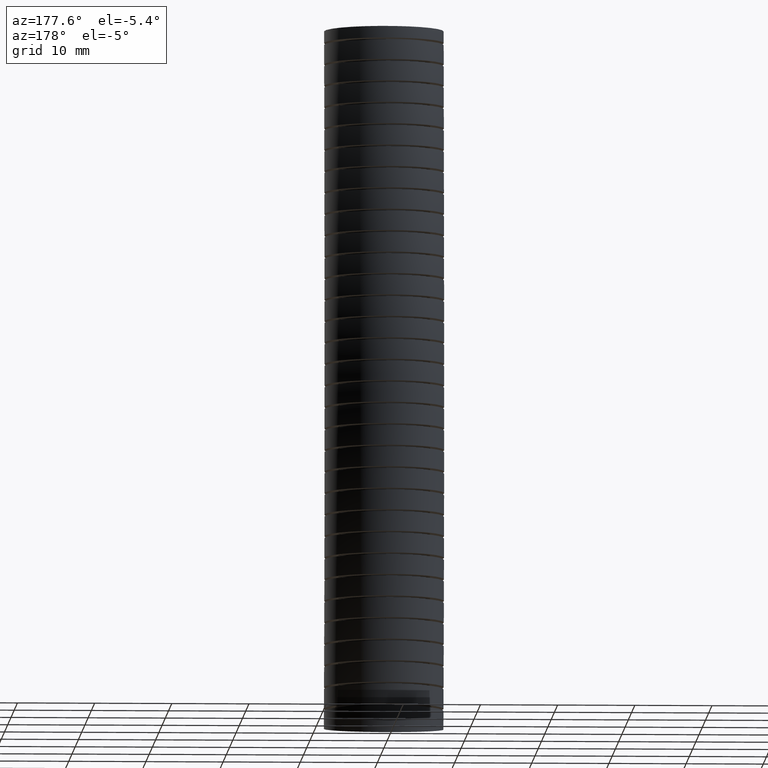
[diagram: clean part render]
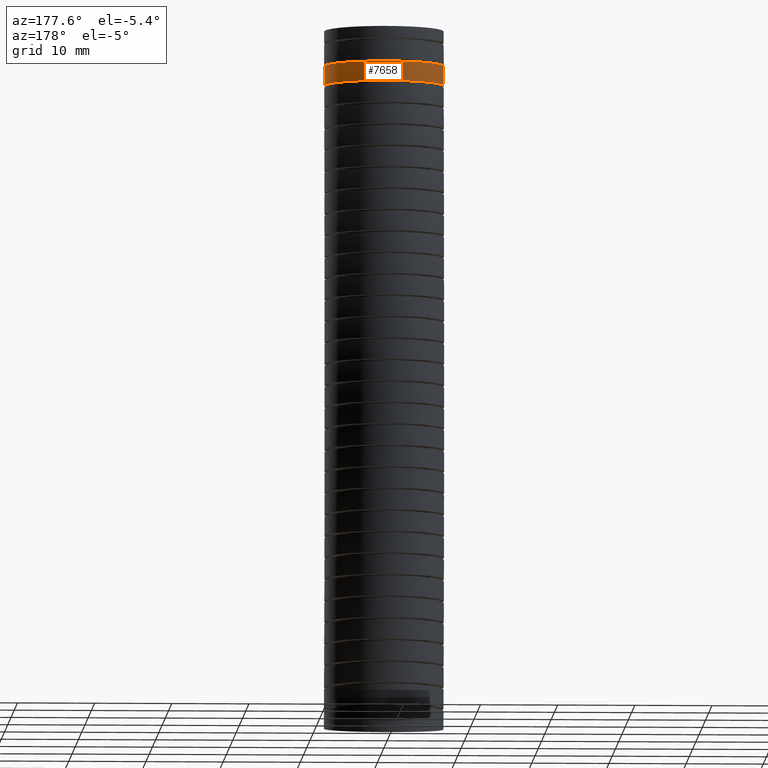
[diagram: same view with one face highlighted and labeled with its STEP entity id]
A machine part, auxiliary view. The second image highlights one B-rep face of the part: STEP entity #7658.
In plain terms, the highlighted face is a freeform B-spline surface patch.
Its self-contained STEP definition (entity closure, byte-faithful):
#2498 = CARTESIAN_POINT ( 'NONE',  ( 0.3050000000000001000, 0.008264919985043951700, -0.1798843797267528100 ) ) ;
#2653 = CARTESIAN_POINT ( 'NONE',  ( -0.3025282801913035700, 0.04828840751932621900, -0.1798843797267461200 ) ) ;
#2654 = CARTESIAN_POINT ( 'NONE',  ( -0.3045026291454070400, 0.02835153162744698600, -0.1798843797267460900 ) ) ;
#2655 = CARTESIAN_POINT ( 'NONE',  ( -0.3049999999999999400, 0.01825418101564759200, -0.1798843797267460100 ) ) ;
#2656 = CARTESIAN_POINT ( 'NONE',  ( -0.3049999999999999900, 0.008264919985043361900, -0.1798843797267460100 ) ) ;
#2660 = B_SPLINE_CURVE_WITH_KNOTS ( 'NONE', 3,
 ( #2656, #2655, #2654, #2653, #2738, #2737, #2736, #2735, #2734, #2733, #2732, #2731, #2730, #2729, #2728, #2727, #2726, #2725, #2724, #2723, #2722, #2721, #2720, #2719, #2718, #2717, #2716, #2715, #2714, #2713, #2712, #2711, #2710, #2709, #2708, #2707, #2706, #2705, #2704, #2703, #2702, #2701, #2700, #2699, #2698 ),
 .UNSPECIFIED., .F., .F.,
 ( 4, 2, 2, 2, 2, 2, 2, 2, 2, 2, 2, 1, 2, 2, 2, 2, 2, 2, 2, 2, 2, 2, 4 ),
 ( 0.02447915468494796900, 0.02524417204589210100, 0.02600918940683623000, 0.02753922412872449000, 0.02906925885061275100, 0.02983427621155688300, 0.03059929357250101200, 0.03212932829438927600, 0.03365936301627753300, 0.03518939773816579700, 0.03595441509910992500, 0.03671943246005405400, 0.03748444982099818200, 0.03824946718194231100, 0.03977950190383056800, 0.04054451926477470300, 0.04130953662571883200, 0.04283957134760709600, 0.04360458870855122400, 0.04436960606949536000, 0.04589964079138362400, 0.04742967551327188800, 0.04895971023516015200 ),
 .UNSPECIFIED. ) ;
#2698 = CARTESIAN_POINT ( 'NONE',  ( 0.3050000000000001000, 0.008264919985043951700, -0.1798843797267528100 ) ) ;
#2699 = CARTESIAN_POINT ( 'NONE',  ( 0.3050000000000001000, 0.02841370344393676100, -0.1798843797267528400 ) ) ;
#2700 = CARTESIAN_POINT ( 'NONE',  ( 0.3029972137185611400, 0.04841757945559040100, -0.1798843797267459800 ) ) ;
#2701 = CARTESIAN_POINT ( 'NONE',  ( 0.2952284011333528000, 0.08738139229224929600, -0.1798843797267460100 ) ) ;
#2702 = CARTESIAN_POINT ( 'NONE',  ( 0.2894374716786731700, 0.1065234891926356600, -0.1798843797267459800 ) ) ;
#2703 = CARTESIAN_POINT ( 'NONE',  ( 0.2740289913188028700, 0.1436765398418865500, -0.1798843797267459800 ) ) ;
#2704 = CARTESIAN_POINT ( 'NONE',  ( 0.2646248493972794300, 0.1612100466032987700, -0.1798843797267459500 ) ) ;
#2705 = CARTESIAN_POINT ( 'NONE',  ( 0.2480564353523960500, 0.1859995597086177300, -0.1798843797267459800 ) ) ;
#2706 = CARTESIAN_POINT ( 'NONE',  ( 0.2421202601055992800, 0.1940090965704035800, -0.1798843797267459500 ) ) ;
#2707 = CARTESIAN_POINT ( 'NONE',  ( 0.2293994366472957800, 0.2095075678197659600, -0.1798843797267459200 ) ) ;
#2708 = CARTESIAN_POINT ( 'NONE',  ( 0.2226118502106389000, 0.2169886886713109400, -0.1798843797267458400 ) ) ;
#2709 = CARTESIAN_POINT ( 'NONE',  ( 0.2014226331123999100, 0.2381538532863010400, -0.1798843797267459500 ) ) ;
#2710 = CARTESIAN_POINT ( 'NONE',  ( 0.1860644495059685100, 0.2507499533479791200, -0.1798843797267460100 ) ) ;
#2711 = CARTESIAN_POINT ( 'NONE',  ( 0.1611834056753037000, 0.2673783606149842700, -0.1798843797267460100 ) ) ;
#2712 = CARTESIAN_POINT ( 'NONE',  ( 0.1525335932965002900, 0.2725647545643510300, -0.1798843797267458700 ) ) ;
#2713 = CARTESIAN_POINT ( 'NONE',  ( 0.1348274169115959700, 0.2820204977194646900, -0.1798843797267459200 ) ) ;
#2714 = CARTESIAN_POINT ( 'NONE',  ( 0.1258051163320715900, 0.2862785458467176900, -0.1798843797267458400 ) ) ;
#2715 = CARTESIAN_POINT ( 'NONE',  ( 0.09824474711268291200, 0.2976825624354628200, -0.1798843797267458400 ) ) ;
#2716 = CARTESIAN_POINT ( 'NONE',  ( 0.07921794405626660100, 0.3034715446039299400, -0.1798843797267459800 ) ) ;
#2717 = CARTESIAN_POINT ( 'NONE',  ( 0.04966777020455508100, 0.3093508068058095600, -0.1798843797267460400 ) ) ;
#2718 = CARTESIAN_POINT ( 'NONE',  ( 0.03970218082432810200, 0.3108237338751864700, -0.1798843797267460900 ) ) ;
#2719 = CARTESIAN_POINT ( 'NONE',  ( 0.01985492244535162800, 0.3127707485509622100, -0.1798843797267460100 ) ) ;
#2720 = CARTESIAN_POINT ( 'NONE',  ( -4.951685250546485600E-007, 0.3137382957828361300, -0.1798843797267457000 ) ) ;
#2721 = CARTESIAN_POINT ( 'NONE',  ( -0.01987203747008249200, 0.3127701705137827000, -0.1798843797267459800 ) ) ;
#2722 = CARTESIAN_POINT ( 'NONE',  ( -0.03975177910982934100, 0.3108177636404501600, -0.1798843797267459500 ) ) ;
#2723 = CARTESIAN_POINT ( 'NONE',  ( -0.04975050526394263900, 0.3093363490661288400, -0.1798843797267459500 ) ) ;
#2724 = CARTESIAN_POINT ( 'NONE',  ( -0.07922897337399886800, 0.3034653259527914100, -0.1798843797267459800 ) ) ;
#2725 = CARTESIAN_POINT ( 'NONE',  ( -0.09824375901865962900, 0.2976841581563788900, -0.1798843797267458700 ) ) ;
#2726 = CARTESIAN_POINT ( 'NONE',  ( -0.1350239660769087500, 0.2824627532263713200, -0.1798843797267458100 ) ) ;
#2727 = CARTESIAN_POINT ( 'NONE',  ( -0.1529376816827332000, 0.2728912967437858700, -0.1798843797267459200 ) ) ;
#2728 = CARTESIAN_POINT ( 'NONE',  ( -0.1860627563720511400, 0.2507488975026818700, -0.1798843797267459200 ) ) ;
#2729 = CARTESIAN_POINT ( 'NONE',  ( -0.2014266959305607000, 0.2381535286222580800, -0.1798843797267459800 ) ) ;
#2730 = CARTESIAN_POINT ( 'NONE',  ( -0.2226526022831232500, 0.2169461104371265500, -0.1798843797267458700 ) ) ;
#2731 = CARTESIAN_POINT ( 'NONE',  ( -0.2294473382212249000, 0.2094518686896609800, -0.1798843797267458400 ) ) ;
#2732 = CARTESIAN_POINT ( 'NONE',  ( -0.2421378567434352700, 0.1939849818928954800, -0.1798843797267458700 ) ) ;
#2733 = CARTESIAN_POINT ( 'NONE',  ( -0.2480660069738587800, 0.1859859186792544600, -0.1798843797267460100 ) ) ;
#2734 = CARTESIAN_POINT ( 'NONE',  ( -0.2646250546880510900, 0.1612083783663353600, -0.1798843797267459500 ) ) ;
#2735 = CARTESIAN_POINT ( 'NONE',  ( -0.2740564293317984100, 0.1436239057267976700, -0.1798843797267459800 ) ) ;
#2736 = CARTESIAN_POINT ( 'NONE',  ( -0.2894702756519512700, 0.1064308144049039100, -0.1798843797267459800 ) ) ;
#2737 = CARTESIAN_POINT ( 'NONE',  ( -0.2952296185319971400, 0.08737890599893186100, -0.1798843797267458700 ) ) ;
#2738 = CARTESIAN_POINT ( 'NONE',  ( -0.3010575880273141900, 0.05814379444321000200, -0.1798843797267459500 ) ) ;
#2739 = B_SPLINE_CURVE_WITH_KNOTS ( 'NONE', 3,
 ( #2809, #2808, #2807, #2806 ),
 .UNSPECIFIED., .F., .F.,
 ( 4, 4 ),
 ( 0.05027708273097072200, 0.07819576797846994300 ),
 .UNSPECIFIED. ) ;
#2740 = CARTESIAN_POINT ( 'NONE',  ( 0.3050000000000000500, 0.01279829925938789400, -0.2797712675536775900 ) ) ;
#2805 = CARTESIAN_POINT ( 'NONE',  ( -0.3049999999999999900, 0.008264919985043361900, -0.1798843797267460100 ) ) ;
#2806 = CARTESIAN_POINT ( 'NONE',  ( 0.3050000000000000500, 0.01279829925938789400, -0.2797712675536775900 ) ) ;
#2807 = CARTESIAN_POINT ( 'NONE',  ( 0.3049999999999999400, 0.01129791340508413100, -0.2464760725880572300 ) ) ;
#2808 = CARTESIAN_POINT ( 'NONE',  ( 0.3049999999999999400, 0.009785336045911521500, -0.2131803846418581500 ) ) ;
#2809 = CARTESIAN_POINT ( 'NONE',  ( 0.3050000000000001000, 0.008264919985043951700, -0.1798843797267528100 ) ) ;
#2865 = B_SPLINE_CURVE_WITH_KNOTS ( 'NONE', 3,
 ( #2941, #2939, #2938, #2937 ),
 .UNSPECIFIED., .F., .F.,
 ( 4, 4 ),
 ( 0.05027708273096881400, 0.07819576797846584900 ),
 .UNSPECIFIED. ) ;
#2867 = CARTESIAN_POINT ( 'NONE',  ( -0.3049999999999999900, 0.01279829925938662100, -0.2797712675536629900 ) ) ;
#2937 = CARTESIAN_POINT ( 'NONE',  ( -0.3049999999999999900, 0.01279829925938662100, -0.2797712675536629900 ) ) ;
#2938 = CARTESIAN_POINT ( 'NONE',  ( -0.3050000000000000500, 0.01129791340508362300, -0.2464760725880451000 ) ) ;
#2939 = CARTESIAN_POINT ( 'NONE',  ( -0.3050000000000000500, 0.009785336045911127700, -0.2131803846418486600 ) ) ;
#2941 = CARTESIAN_POINT ( 'NONE',  ( -0.3049999999999999900, 0.008264919985043361900, -0.1798843797267460100 ) ) ;
#7657 = EDGE_LOOP ( 'NONE', ( #14346, #14342, #14347, #14344 ) ) ;
#7658 = ADVANCED_FACE ( 'NONE', ( #14549 ), #14612, .T. ) ;
#7689 = EDGE_CURVE ( 'NONE', #14352, #14356, #14911, .T. ) ;
#14097 = VERTEX_POINT ( 'NONE', #2498 ) ;
#14342 = ORIENTED_EDGE ( 'NONE', *, *, #14343, .T. ) ;
#14343 = EDGE_CURVE ( 'NONE', #14354, #14097, #2660, .T. ) ;
#14344 = ORIENTED_EDGE ( 'NONE', *, *, #7689, .T. ) ;
#14346 = ORIENTED_EDGE ( 'NONE', *, *, #14358, .F. ) ;
#14347 = ORIENTED_EDGE ( 'NONE', *, *, #14350, .T. ) ;
#14350 = EDGE_CURVE ( 'NONE', #14097, #14352, #2739, .T. ) ;
#14352 = VERTEX_POINT ( 'NONE', #2740 ) ;
#14354 = VERTEX_POINT ( 'NONE', #2805 ) ;
#14356 = VERTEX_POINT ( 'NONE', #2867 ) ;
#14358 = EDGE_CURVE ( 'NONE', #14354, #14356, #2865, .T. ) ;
#14549 = FACE_OUTER_BOUND ( 'NONE', #7657, .T. ) ;
#14587 = CARTESIAN_POINT ( 'NONE',  ( -0.3050000000000000500, -0.6165911457587421900, -3.301565899820480900 ) ) ;
#14588 = CARTESIAN_POINT ( 'NONE',  ( -0.3050000000000000500, -0.5689348463287677800, -2.799795492787948300 ) ) ;
#14589 = CARTESIAN_POINT ( 'NONE',  ( -0.3050000000000001000, -0.5337097317260344200, -1.651227135941712300 ) ) ;
#14590 = CARTESIAN_POINT ( 'NONE',  ( -0.3050000000000001600, -0.5794800608306244200, -0.6605737911785694000 ) ) ;
#14591 = CARTESIAN_POINT ( 'NONE',  ( -0.3050000000000001000, -0.6100000000000001000, 0.0000000000000000000 ) ) ;
#14592 = CARTESIAN_POINT ( 'NONE',  ( 0.3049999999999999400, -0.6339397472009050700, -3.484228316147418800 ) ) ;
#14593 = CARTESIAN_POINT ( 'NONE',  ( 0.3049999999999999400, -0.6165911457587421900, -3.301565899820480900 ) ) ;
#14594 = CARTESIAN_POINT ( 'NONE',  ( 0.3049999999999999400, -0.5689348463287677800, -2.799795492787948300 ) ) ;
#14595 = CARTESIAN_POINT ( 'NONE',  ( 0.3050000000000000500, -0.5337097317260344200, -1.651227135941712300 ) ) ;
#14596 = CARTESIAN_POINT ( 'NONE',  ( 0.3050000000000000500, -0.5794800608306244200, -0.6605737911785694000 ) ) ;
#14597 = CARTESIAN_POINT ( 'NONE',  ( 0.3050000000000000500, -0.6100000000000001000, 0.0000000000000000000 ) ) ;
#14598 = CARTESIAN_POINT ( 'NONE',  ( 0.3049999999999999900, -0.02999999999999999900, -3.569999999999999400 ) ) ;
#14599 = CARTESIAN_POINT ( 'NONE',  ( 0.3049999999999999400, -0.01189670328115252300, -3.380058092153300100 ) ) ;
#14600 = CARTESIAN_POINT ( 'NONE',  ( 0.3049999999999999900, 0.03783273064349424600, -2.858291051460112500 ) ) ;
#14601 = CARTESIAN_POINT ( 'NONE',  ( 0.3049999999999999900, 0.07694042471324438700, -1.669468061939300500 ) ) ;
#14602 = CARTESIAN_POINT ( 'NONE',  ( 0.3050000000000000500, 0.03078003440073750300, -0.6678710777714059700 ) ) ;
#14603 = CARTESIAN_POINT ( 'NONE',  ( 0.3050000000000000500, 0.0000000000000000000, 0.0000000000000000000 ) ) ;
#14612 =( BOUNDED_SURFACE ( )  B_SPLINE_SURFACE ( 3, 3, ( 
 ( #14603, #14602, #14601, #14600, #14599, #14598 ),
 ( #14597, #14596, #14595, #14594, #14593, #14592 ),
 ( #14591, #14590, #14589, #14588, #14587, #14647 ),
 ( #14646, #14645, #14644, #14643, #14642, #14641 ),
 ( #14640, #14639, #14638, #14637, #14636, #14635 ),
 ( #14634, #14633, #14632, #14631, #14630, #14629 ),
 ( #14628, #14627, #14626, #14625, #14624, #14623 ) ),
 .UNSPECIFIED., .F., .F., .F. ) 
 B_SPLINE_SURFACE_WITH_KNOTS ( ( 4, 3, 4 ),
 ( 4, 1, 1, 4 ),
 ( 0.0000000000000000000, 0.5000000000000000000, 1.000000000000000000 ),
 ( 0.0000000000000000000, 0.5599999999999999400, 0.8398242262648183400, 1.000000000000000000 ),
 .UNSPECIFIED. ) 
 GEOMETRIC_REPRESENTATION_ITEM ( )  RATIONAL_B_SPLINE_SURFACE ( (
 ( 1.000000000000000000, 1.000000000000000000, 1.000000000000000200, 1.000000000000000000, 1.000000000000000000, 1.000000000000000000),
 ( 0.3333333333333333100, 0.3333333333333333100, 0.3333333333333333100, 0.3333333333333333100, 0.3333333333333333100, 0.3333333333333333100),
 ( 0.3333333333333333100, 0.3333333333333333100, 0.3333333333333333100, 0.3333333333333333100, 0.3333333333333333100, 0.3333333333333333100),
 ( 1.000000000000000000, 1.000000000000000000, 1.000000000000000200, 1.000000000000000000, 1.000000000000000000, 1.000000000000000000),
 ( 0.3333333333333333100, 0.3333333333333333100, 0.3333333333333333100, 0.3333333333333333100, 0.3333333333333333100, 0.3333333333333333100),
 ( 0.3333333333333333100, 0.3333333333333333100, 0.3333333333333333100, 0.3333333333333333100, 0.3333333333333333100, 0.3333333333333333100),
 ( 1.000000000000000000, 1.000000000000000000, 1.000000000000000200, 1.000000000000000000, 1.000000000000000000, 1.000000000000000000) ) ) 
 REPRESENTATION_ITEM ( '' )  SURFACE ( )  );
#14623 = CARTESIAN_POINT ( 'NONE',  ( 0.3049999999999999900, -0.02999999999999999900, -3.569999999999999400 ) ) ;
#14624 = CARTESIAN_POINT ( 'NONE',  ( 0.3049999999999999400, -0.01189670328115252300, -3.380058092153300100 ) ) ;
#14625 = CARTESIAN_POINT ( 'NONE',  ( 0.3049999999999999900, 0.03783273064349424600, -2.858291051460112500 ) ) ;
#14626 = CARTESIAN_POINT ( 'NONE',  ( 0.3049999999999999900, 0.07694042471324438700, -1.669468061939300500 ) ) ;
#14627 = CARTESIAN_POINT ( 'NONE',  ( 0.3050000000000000500, 0.03078003440073750300, -0.6678710777714059700 ) ) ;
#14628 = CARTESIAN_POINT ( 'NONE',  ( 0.3050000000000000500, 0.0000000000000000000, 0.0000000000000000000 ) ) ;
#14629 = CARTESIAN_POINT ( 'NONE',  ( 0.3049999999999999400, 0.5739397472009051300, -3.655771683852579600 ) ) ;
#14630 = CARTESIAN_POINT ( 'NONE',  ( 0.3049999999999999400, 0.5927977391964371900, -3.458550284486119800 ) ) ;
#14631 = CARTESIAN_POINT ( 'NONE',  ( 0.3049999999999999400, 0.6446003076157559300, -2.916786610132277200 ) ) ;
#14632 = CARTESIAN_POINT ( 'NONE',  ( 0.3050000000000000500, 0.6875905811525232500, -1.687708987936889400 ) ) ;
#14633 = CARTESIAN_POINT ( 'NONE',  ( 0.3050000000000000500, 0.6410401296320993300, -0.6751683643642422100 ) ) ;
#14634 = CARTESIAN_POINT ( 'NONE',  ( 0.3050000000000000500, 0.6100000000000001000, 0.0000000000000000000 ) ) ;
#14635 = CARTESIAN_POINT ( 'NONE',  ( -0.3049999999999998800, 0.5739397472009051300, -3.655771683852579600 ) ) ;
#14636 = CARTESIAN_POINT ( 'NONE',  ( -0.3049999999999998800, 0.5927977391964373000, -3.458550284486119800 ) ) ;
#14637 = CARTESIAN_POINT ( 'NONE',  ( -0.3049999999999999400, 0.6446003076157562600, -2.916786610132277200 ) ) ;
#14638 = CARTESIAN_POINT ( 'NONE',  ( -0.3049999999999999400, 0.6875905811525234700, -1.687708987936889400 ) ) ;
#14639 = CARTESIAN_POINT ( 'NONE',  ( -0.3049999999999999400, 0.6410401296320996600, -0.6751683643642422100 ) ) ;
#14640 = CARTESIAN_POINT ( 'NONE',  ( -0.3049999999999999400, 0.6100000000000001000, 0.0000000000000000000 ) ) ;
#14641 = CARTESIAN_POINT ( 'NONE',  ( -0.3049999999999999900, -0.02999999999999996100, -3.569999999999999400 ) ) ;
#14642 = CARTESIAN_POINT ( 'NONE',  ( -0.3049999999999999400, -0.01189670328115248300, -3.380058092153300100 ) ) ;
#14643 = CARTESIAN_POINT ( 'NONE',  ( -0.3049999999999999900, 0.03783273064349428100, -2.858291051460112500 ) ) ;
#14644 = CARTESIAN_POINT ( 'NONE',  ( -0.3049999999999999900, 0.07694042471324441500, -1.669468061939300500 ) ) ;
#14645 = CARTESIAN_POINT ( 'NONE',  ( -0.3050000000000000500, 0.03078003440073754200, -0.6678710777714059700 ) ) ;
#14646 = CARTESIAN_POINT ( 'NONE',  ( -0.3050000000000000500, 3.735172737399427600E-017, 0.0000000000000000000 ) ) ;
#14647 = CARTESIAN_POINT ( 'NONE',  ( -0.3050000000000000500, -0.6339397472009050700, -3.484228316147418800 ) ) ;
#14901 = CARTESIAN_POINT ( 'NONE',  ( 0.2740538739448453200, 0.1481248855858751900, -0.2797712675536631100 ) ) ;
#14902 = CARTESIAN_POINT ( 'NONE',  ( 0.2893134024150316200, 0.1113758501586127000, -0.2797712675536631600 ) ) ;
#14903 = CARTESIAN_POINT ( 'NONE',  ( 0.2951190360006659700, 0.09236640826742326100, -0.2797712675536631100 ) ) ;
#14904 = CARTESIAN_POINT ( 'NONE',  ( 0.3010270762544429200, 0.06287750817935365600, -0.2797712675536631600 ) ) ;
#14905 = CARTESIAN_POINT ( 'NONE',  ( 0.3025203610477779100, 0.05288652403172842300, -0.2797712675536628800 ) ) ;
#14906 = CARTESIAN_POINT ( 'NONE',  ( 0.3045020884040591200, 0.03290423268461484900, -0.2797712675536629900 ) ) ;
#14907 = CARTESIAN_POINT ( 'NONE',  ( 0.3050000000000001000, 0.02287201073900150700, -0.2797712675536776500 ) ) ;
#14908 = CARTESIAN_POINT ( 'NONE',  ( 0.3050000000000000500, 0.01279829925938789400, -0.2797712675536775900 ) ) ;
#14911 = B_SPLINE_CURVE_WITH_KNOTS ( 'NONE', 3,
 ( #14908, #14907, #14906, #14905, #14904, #14903, #14902, #14901, #14982, #14981, #14980, #14979, #14978, #14977, #14976, #14975, #14974, #14973, #14972, #14971, #14970, #14969, #14968, #14967, #14966, #14965, #14964, #14963, #14962, #14961, #14960, #14959, #14958, #14957, #14956, #14955, #14954, #14953, #14952, #14951, #14950, #14949, #14948 ),
 .UNSPECIFIED., .F., .F.,
 ( 4, 2, 2, 2, 2, 2, 2, 2, 2, 2, 2, 2, 2, 2, 2, 2, 1, 2, 2, 2, 2, 4 ),
 ( 0.0000000000000000000, 0.0007649656747035262800, 0.001529931349407052600, 0.003059862698814106000, 0.004589794048221159200, 0.006119725397628212800, 0.006884691072331741400, 0.007649656747035271700, 0.009179588096442325300, 0.01070951944584938100, 0.01147448512055290900, 0.01223945079525643800, 0.01376938214466349100, 0.01529931349407054900, 0.01682924484347760400, 0.01759421051818112900, 0.01835917619288465400, 0.01912414186758818300, 0.01988910754229170800, 0.02141903889169876100, 0.02294897024110581500, 0.02447890159051286900 ),
 .UNSPECIFIED. ) ;
#14948 = CARTESIAN_POINT ( 'NONE',  ( -0.3049999999999999900, 0.01279829925938662100, -0.2797712675536629900 ) ) ;
#14949 = CARTESIAN_POINT ( 'NONE',  ( -0.3050000000000000500, 0.03277546556180883900, -0.2797712675536628800 ) ) ;
#14950 = CARTESIAN_POINT ( 'NONE',  ( -0.3030557963010689400, 0.05254244977214966900, -0.2797712675536631100 ) ) ;
#14951 = CARTESIAN_POINT ( 'NONE',  ( -0.2953014746700077200, 0.09165848567794776500, -0.2797712675536631600 ) ) ;
#14952 = CARTESIAN_POINT ( 'NONE',  ( -0.2894124298446089600, 0.1110833994041213700, -0.2797712675536629900 ) ) ;
#14953 = CARTESIAN_POINT ( 'NONE',  ( -0.2741960290911649200, 0.1478356564408117900, -0.2797712675536628800 ) ) ;
#14954 = CARTESIAN_POINT ( 'NONE',  ( -0.2648463504814135300, 0.1653811124831166300, -0.2797712675536629900 ) ) ;
#14955 = CARTESIAN_POINT ( 'NONE',  ( -0.2481387579979734700, 0.1904194894532601200, -0.2797712675536629900 ) ) ;
#14956 = CARTESIAN_POINT ( 'NONE',  ( -0.2421300497080565400, 0.1985230567063321900, -0.2797712675536631600 ) ) ;
#14957 = CARTESIAN_POINT ( 'NONE',  ( -0.2294748715653593400, 0.2139481434135454000, -0.2797712675536631600 ) ) ;
#14958 = CARTESIAN_POINT ( 'NONE',  ( -0.2161239589145058100, 0.2286815714256736400, -0.2797712675536627200 ) ) ;
#14959 = CARTESIAN_POINT ( 'NONE',  ( -0.2014004801568534100, 0.2420504742184592900, -0.2797712675536632200 ) ) ;
#14960 = CARTESIAN_POINT ( 'NONE',  ( -0.1859802915248284800, 0.2547267486639203700, -0.2797712675536632200 ) ) ;
#14961 = CARTESIAN_POINT ( 'NONE',  ( -0.1778741744381610300, 0.2607487084477799200, -0.2797712675536631600 ) ) ;
#14962 = CARTESIAN_POINT ( 'NONE',  ( -0.1528692065160619800, 0.2774684380500042600, -0.2797712675536631600 ) ) ;
#14963 = CARTESIAN_POINT ( 'NONE',  ( -0.1353373639223622000, 0.2868350639151822600, -0.2797712675536631600 ) ) ;
#14964 = CARTESIAN_POINT ( 'NONE',  ( -0.09859068897201875300, 0.3020927242121277400, -0.2797712675536631600 ) ) ;
#14965 = CARTESIAN_POINT ( 'NONE',  ( -0.07916551336806092200, 0.3080020532318359900, -0.2797712675536629900 ) ) ;
#14966 = CARTESIAN_POINT ( 'NONE',  ( -0.04007380630114058100, 0.3157933544360314600, -0.2797712675536629900 ) ) ;
#14967 = CARTESIAN_POINT ( 'NONE',  ( -0.02030791214110653700, 0.3177600421257217900, -0.2797712675536631100 ) ) ;
#14968 = CARTESIAN_POINT ( 'NONE',  ( 0.009673856220269854200, 0.3177915032145911000, -0.2797712675536631100 ) ) ;
#14969 = CARTESIAN_POINT ( 'NONE',  ( 0.01977518447655541400, 0.3173040295384517700, -0.2797712675536629400 ) ) ;
#14970 = CARTESIAN_POINT ( 'NONE',  ( 0.03970029611940774400, 0.3153521237829381400, -0.2797712675536629900 ) ) ;
#14971 = CARTESIAN_POINT ( 'NONE',  ( 0.04955289173991245200, 0.3138930225342966300, -0.2797712675536628800 ) ) ;
#14972 = CARTESIAN_POINT ( 'NONE',  ( 0.07878821347043241100, 0.3080988561289247400, -0.2797712675536629400 ) ) ;
#14973 = CARTESIAN_POINT ( 'NONE',  ( 0.09785164445363769800, 0.3023608568282144000, -0.2797712675536631100 ) ) ;
#14974 = CARTESIAN_POINT ( 'NONE',  ( 0.1350888749488160000, 0.2869759530736958900, -0.2797712675536629900 ) ) ;
#14975 = CARTESIAN_POINT ( 'NONE',  ( 0.1526484746926012300, 0.2775818762121767800, -0.2797712675536628300 ) ) ;
#14976 = CARTESIAN_POINT ( 'NONE',  ( 0.1774466348943400400, 0.2610511132892480700, -0.2797712675536627200 ) ) ;
#14977 = CARTESIAN_POINT ( 'NONE',  ( 0.1854549510200766700, 0.2551307931413375800, -0.2797712675536629900 ) ) ;
#14978 = CARTESIAN_POINT ( 'NONE',  ( 0.2009444462314739800, 0.2424514658786896500, -0.2797712675536631100 ) ) ;
#14979 = CARTESIAN_POINT ( 'NONE',  ( 0.2084445972692397000, 0.2356663729512183400, -0.2797712675536631100 ) ) ;
#14980 = CARTESIAN_POINT ( 'NONE',  ( 0.2296633750277966800, 0.2144782749246577900, -0.2797712675536631100 ) ) ;
#14981 = CARTESIAN_POINT ( 'NONE',  ( 0.2422762651286211000, 0.1991325969854346200, -0.2797712675536632200 ) ) ;
#14982 = CARTESIAN_POINT ( 'NONE',  ( 0.2644647047867024800, 0.1660234353895740400, -0.2797712675536632200 ) ) ;